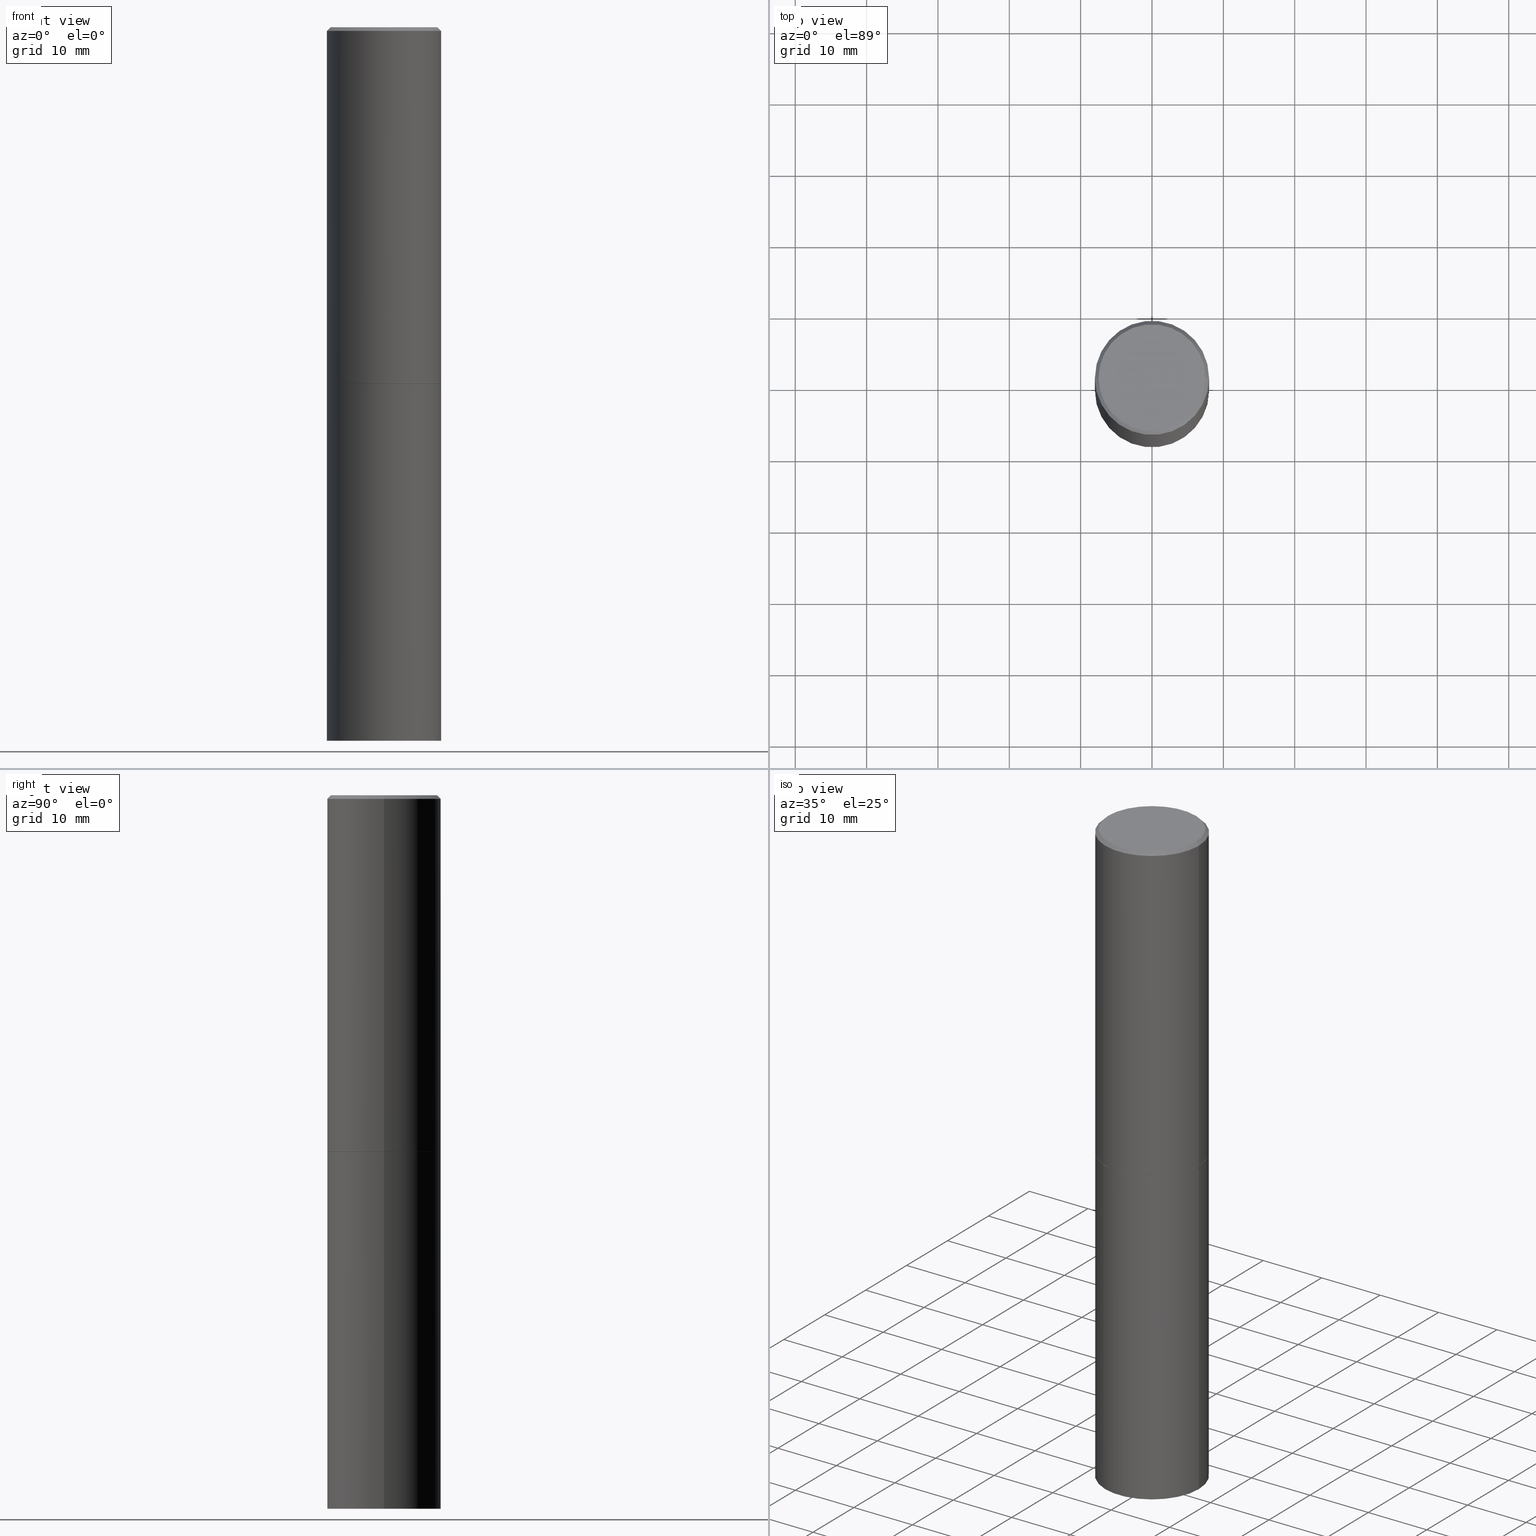
[diagram: canonical four-view strip — front | top / right | iso, engineering-drawing reading convention]
A machine part, canonical four-view strip (front | top / right | iso — engineering-drawing reading convention). The complete STEP part file that produces these views, byte-faithful:
ISO-10303-21;
HEADER;
FILE_DESCRIPTION (( 'STEP AP203' ),
    '1' );
FILE_NAME ('42626.STEP',
    '2024-02-28T03:46:43',
    ( '' ),
    ( '' ),
    'SwSTEP 2.0',
    'SolidWorks 2023',
    '' );
FILE_SCHEMA (( 'CONFIG_CONTROL_DESIGN' ));
ENDSEC;

DATA;
#1 = DIRECTION ( 'NONE',  ( 1.000000000000000000, -6.982962677686269866E-15, 0.000000000000000000 ) ) ;
#2 = DIRECTION ( 'NONE',  ( 0.000000000000000000, 0.000000000000000000, 1.000000000000000000 ) ) ;
#3 = EDGE_CURVE ( 'NONE', #113, #327, #360, .T. ) ;
#4 = CARTESIAN_POINT ( 'NONE',  ( 0.000000000000000000, 0.000000000000000000, 0.000000000000000000 ) ) ;
#5 = ORIENTED_EDGE ( 'NONE', *, *, #166, .T. ) ;
#6 = EDGE_CURVE ( 'NONE', #54, #350, #25, .T. ) ;
#7 = AXIS2_PLACEMENT_3D ( 'NONE', #102, #9, #126 ) ;
#8 = CARTESIAN_POINT ( 'NONE',  ( 9.627810689950883669E-29, -1.374596203102546341E-14, -3.937000000000000277 ) ) ;
#9 = DIRECTION ( 'NONE',  ( -2.445468806185136597E-29, 3.491481338843145583E-15, 1.000000000000000000 ) ) ;
#10 = FACE_OUTER_BOUND ( 'NONE', #64, .T. ) ;
#11 = CARTESIAN_POINT ( 'NONE',  ( 0.3149500000000000077, -9.072265110850021578E-15, -1.968500000000000139 ) ) ;
#12 = CC_DESIGN_DATE_AND_TIME_ASSIGNMENT ( #320, #72, ( #272 ) ) ;
#13 = PERSON_AND_ORGANIZATION ( #298, #171 ) ;
#14 = APPROVAL_PERSON_ORGANIZATION ( #32, #339, #310 ) ;
#15 = DIRECTION ( 'NONE',  ( 1.000000000000000000, -6.982962677686266711E-15, 0.000000000000000000 ) ) ;
#16 = DIRECTION ( 'NONE',  ( -2.445468806185136597E-29, 3.491481338843145583E-15, 1.000000000000000000 ) ) ;
#17 = FACE_OUTER_BOUND ( 'NONE', #322, .T. ) ;
#18 = CIRCLE ( 'NONE', #288, 0.3149499999999997302 ) ;
#19 = CC_DESIGN_APPROVAL ( #309, ( #272 ) ) ;
#20 = ORIENTED_EDGE ( 'NONE', *, *, #230, .F. ) ;
#21 = FACE_OUTER_BOUND ( 'NONE', #290, .T. ) ;
#22 = ORIENTED_EDGE ( 'NONE', *, *, #141, .F. ) ;
#23 = CC_DESIGN_PERSON_AND_ORGANIZATION_ASSIGNMENT ( #228, #340, ( #349 ) ) ;
#24 = DIRECTION ( 'NONE',  ( -2.445468806185136597E-29, 3.491481338843145583E-15, 1.000000000000000000 ) ) ;
#25 = CIRCLE ( 'NONE', #7, 0.3139500000000000068 ) ;
#26 = DIRECTION ( 'NONE',  ( 1.000000000000000000, -6.982962677686266711E-15, 0.000000000000000000 ) ) ;
#27 = APPROVAL_ROLE ( '' ) ;
#28 = ADVANCED_FACE ( 'NONE', ( #10 ), #259, .T. ) ;
#29 = VERTEX_POINT ( 'NONE', #67 ) ;
#30 = APPLICATION_PROTOCOL_DEFINITION ( 'international standard', 'config_control_design', 1994, #268 ) ;
#31 = ADVANCED_BREP_SHAPE_REPRESENTATION ( '42626', ( #341, #98, #246 ), #324 ) ;
#32 = PERSON_AND_ORGANIZATION ( #298, #171 ) ;
#33 = CIRCLE ( 'NONE', #133, 0.2949499999999997124 ) ;
#34 = SECURITY_CLASSIFICATION_LEVEL ( 'unclassified' ) ;
#35 = ADVANCED_FACE ( 'NONE', ( #315 ), #199, .T. ) ;
#36 = AXIS2_PLACEMENT_3D ( 'NONE', #8, #233, #1 ) ;
#37 = ORIENTED_EDGE ( 'NONE', *, *, #3, .F. ) ;
#38 = COORDINATED_UNIVERSAL_TIME_OFFSET ( 5, 0, .BEHIND. ) ;
#39 = PRODUCT_DEFINITION ( 'UNKNOWN', '', #205, #346 ) ;
#40 = CARTESIAN_POINT ( 'NONE',  ( 4.890937612370293302E-31, -6.982962677686318726E-17, -0.02000000000000008021 ) ) ;
#41 = CYLINDRICAL_SURFACE ( 'NONE', #204, 0.3149499999999998967 ) ;
#42 = ORIENTED_EDGE ( 'NONE', *, *, #325, .T. ) ;
#43 = LINE ( 'NONE', #162, #300 ) ;
#44 = CIRCLE ( 'NONE', #256, 0.3139500000000000068 ) ;
#45 = DIRECTION ( 'NONE',  ( 1.000000000000000000, -6.982962677686266711E-15, 0.000000000000000000 ) ) ;
#46 = ORIENTED_EDGE ( 'NONE', *, *, #274, .F. ) ;
#47 = DIRECTION ( 'NONE',  ( -2.445468806185136877E-29, 3.491481338843145188E-15, 1.000000000000000000 ) ) ;
#48 = CC_DESIGN_APPROVAL ( #206, ( #205 ) ) ;
#49 = ORIENTED_EDGE ( 'NONE', *, *, #282, .T. ) ;
#50 = CARTESIAN_POINT ( 'NONE',  ( 9.627810689950883669E-29, -1.374596203102546341E-14, -3.937000000000000277 ) ) ;
#51 = ORIENTED_EDGE ( 'NONE', *, *, #164, .T. ) ;
#52 = PERSON_AND_ORGANIZATION ( #298, #171 ) ;
#53 = AXIS2_PLACEMENT_3D ( 'NONE', #234, #353, #260 ) ;
#54 = VERTEX_POINT ( 'NONE', #128 ) ;
#55 = LOCAL_TIME ( 22, 46, 43.00000000000000000, #38 ) ;
#56 = PERSON_AND_ORGANIZATION_ROLE ( 'creator' ) ;
#57 = DIRECTION ( 'NONE',  ( 2.438088387897960049E-29, -3.491481338843145188E-15, -1.000000000000000000 ) ) ;
#58 = DATE_AND_TIME ( #90, #221 ) ;
#59 = CARTESIAN_POINT ( 'NONE',  ( 3.131554243005659264E-46, -4.471029511141341874E-32, -1.280553747030123384E-17 ) ) ;
#60 = PERSON_AND_ORGANIZATION_ROLE ( 'creator' ) ;
#61 = CLOSED_SHELL ( 'NONE', ( #145, #134, #265, #35, #28, #155, #224, #366 ) ) ;
#62 = CARTESIAN_POINT ( 'NONE',  ( 2.059624841783562091E-15, 0.2949499999999997124, -1.036215189626935433E-15 ) ) ;
#63 = EDGE_LOOP ( 'NONE', ( #5, #73, #283, #184 ) ) ;
#64 = EDGE_LOOP ( 'NONE', ( #92, #312, #42, #37 ) ) ;
#65 = DIRECTION ( 'NONE',  ( -2.445468806185136597E-29, 3.491481338843145583E-15, 1.000000000000000000 ) ) ;
#66 = DIRECTION ( 'NONE',  ( 2.438088387897960049E-29, -3.491481338843145188E-15, -1.000000000000000000 ) ) ;
#67 = CARTESIAN_POINT ( 'NONE',  ( -0.3149500000000000077, -8.071617176992661576E-15, -1.968500000000000139 ) ) ;
#68 = EDGE_CURVE ( 'NONE', #254, #113, #293, .T. ) ;
#69 = AXIS2_PLACEMENT_3D ( 'NONE', #267, #208, #71 ) ;
#70 = PLANE ( 'NONE',  #323 ) ;
#71 = DIRECTION ( 'NONE',  ( 1.000000000000000000, -6.982962677686266711E-15, 0.000000000000000000 ) ) ;
#72 = DATE_TIME_ROLE ( 'classification_date' ) ;
#73 = ORIENTED_EDGE ( 'NONE', *, *, #123, .T. ) ;
#74 = DIRECTION ( 'NONE',  ( -2.438088387897960049E-29, 3.491481338843145188E-15, 1.000000000000000000 ) ) ;
#75 = DIRECTION ( 'NONE',  ( -2.445468806185136877E-29, 3.491481338843145188E-15, 1.000000000000000000 ) ) ;
#76 = ORIENTED_EDGE ( 'NONE', *, *, #166, .F. ) ;
#77 = AXIS2_PLACEMENT_3D ( 'NONE', #191, #24, #142 ) ;
#78 = CARTESIAN_POINT ( 'NONE',  ( -0.3149500000000000077, -8.071617176992661576E-15, -3.937000000000000277 ) ) ;
#79 = CARTESIAN_POINT ( 'NONE',  ( -0.3149499999999997302, 2.129454468560424601E-15, -0.02000000000000008021 ) ) ;
#80 = CARTESIAN_POINT ( 'NONE',  ( 0.3149499999999998967, -2.199284095337288688E-15, 1.535751875536929289E-29 ) ) ;
#81 = CC_DESIGN_PERSON_AND_ORGANIZATION_ASSIGNMENT ( #52, #286, ( #272 ) ) ;
#82 = DIRECTION ( 'NONE',  ( -1.000000000000000000, 6.982962677686266711E-15, 0.000000000000000000 ) ) ;
#83 = CIRCLE ( 'NONE', #297, 0.3149500000000000077 ) ;
#84 = CARTESIAN_POINT ( 'NONE',  ( 0.3149500000000000077, -1.594524612636275486E-14, -3.937000000000000277 ) ) ;
#85 = EDGE_LOOP ( 'NONE', ( #156, #149, #264, #251 ) ) ;
#86 = ORIENTED_EDGE ( 'NONE', *, *, #211, .T. ) ;
#87 = CARTESIAN_POINT ( 'NONE',  ( 0.3139500000000000068, -9.065282148172333986E-15, -1.968499999999999694 ) ) ;
#88 = ORIENTED_EDGE ( 'NONE', *, *, #334, .F. ) ;
#89 = CALENDAR_DATE ( 2024, 27, 2 ) ;
#90 = CALENDAR_DATE ( 2024, 27, 2 ) ;
#91 = EDGE_CURVE ( 'NONE', #218, #29, #236, .T. ) ;
#92 = ORIENTED_EDGE ( 'NONE', *, *, #211, .F. ) ;
#93 = APPROVAL_DATE_TIME ( #225, #206 ) ;
#94 = DIRECTION ( 'NONE',  ( -2.445468806185136597E-29, 3.491481338843145583E-15, 1.000000000000000000 ) ) ;
#95 = DIRECTION ( 'NONE',  ( -1.000000000000000000, 6.982962677686266711E-15, 0.000000000000000000 ) ) ;
#96 = DIRECTION ( 'NONE',  ( 1.000000000000000000, -6.982962677686269866E-15, 0.000000000000000000 ) ) ;
#97 = DIRECTION ( 'NONE',  ( 1.000000000000000000, -6.982962677686266711E-15, 0.000000000000000000 ) ) ;
#98 = MANIFOLD_SOLID_BREP ( 'Body-Move/Copy2[2]', #61 ) ;
#99 = EDGE_LOOP ( 'NONE', ( #22, #154 ) ) ;
#100 = CONICAL_SURFACE ( 'NONE', #194, 0.3139500000000000068, 0.7853981633975507526 ) ;
#101 = CC_DESIGN_APPROVAL ( #339, ( #39 ) ) ;
#102 = CARTESIAN_POINT ( 'NONE',  ( 4.813905344975440714E-29, -6.872981015512730918E-15, -1.968499999999999694 ) ) ;
#103 = EDGE_CURVE ( 'NONE', #192, #327, #180, .T. ) ;
#104 = CARTESIAN_POINT ( 'NONE',  ( -0.3139500000000000068, -4.642232096593895942E-15, -1.968499999999999694 ) ) ;
#105 = DIRECTION ( 'NONE',  ( -2.445468806185136597E-29, 3.491481338843145583E-15, 1.000000000000000000 ) ) ;
#106 = VECTOR ( 'NONE', #153, 39.37007874015748143 ) ;
#107 = ORIENTED_EDGE ( 'NONE', *, *, #103, .F. ) ;
#108 = CARTESIAN_POINT ( 'NONE',  ( 0.3139500000000000068, -9.065282148172333986E-15, -1.968499999999999694 ) ) ;
#109 = EDGE_CURVE ( 'NONE', #172, #218, #112, .T. ) ;
#110 = CARTESIAN_POINT ( 'NONE',  ( 0.000000000000000000, 0.000000000000000000, 0.000000000000000000 ) ) ;
#111 = CARTESIAN_POINT ( 'NONE',  ( 4.890937612370293302E-31, -6.982962677686318726E-17, -0.02000000000000008021 ) ) ;
#112 = LINE ( 'NONE', #209, #183 ) ;
#113 = VERTEX_POINT ( 'NONE', #79 ) ;
#114 = DIRECTION ( 'NONE',  ( 1.000000000000000000, -6.982962677686266711E-15, 4.876176775795936353E-29 ) ) ;
#115 = AXIS2_PLACEMENT_3D ( 'NONE', #59, #94, #258 ) ;
#116 = APPROVAL_DATE_TIME ( #58, #339 ) ;
#117 =( CONVERSION_BASED_UNIT ( 'INCH', #343 ) LENGTH_UNIT ( ) NAMED_UNIT ( #146 ) );
#118 = ORIENTED_EDGE ( 'NONE', *, *, #91, .T. ) ;
#119 = MECHANICAL_CONTEXT ( 'NONE', #268, 'mechanical' ) ;
#120 = CIRCLE ( 'NONE', #249, 0.3149500000000000077 ) ;
#121 = CIRCLE ( 'NONE', #232, 0.3149500000000000077 ) ;
#122 = COORDINATED_UNIVERSAL_TIME_OFFSET ( 5, 0, .BEHIND. ) ;
#123 = EDGE_CURVE ( 'NONE', #303, #29, #190, .T. ) ;
#124 = FACE_OUTER_BOUND ( 'NONE', #356, .T. ) ;
#125 = DIRECTION ( 'NONE',  ( 1.000000000000000000, -6.982962677686266711E-15, 0.000000000000000000 ) ) ;
#126 = DIRECTION ( 'NONE',  ( 1.000000000000000000, -6.982962677686266711E-15, 0.000000000000000000 ) ) ;
#127 = CONICAL_SURFACE ( 'NONE', #278, 0.3139500000000000068, 0.7853981633975507526 ) ;
#128 = CARTESIAN_POINT ( 'NONE',  ( -0.3139500000000000068, -4.636933642245673540E-15, -1.968499999999999694 ) ) ;
#129 = CARTESIAN_POINT ( 'NONE',  ( -0.3149499999999997302, 2.129454468560424601E-15, -0.02000000000000008021 ) ) ;
#130 = CARTESIAN_POINT ( 'NONE',  ( 4.813905344975441835E-29, -6.872981015512731707E-15, -1.968500000000000139 ) ) ;
#131 = DIRECTION ( 'NONE',  ( -2.445468806185136597E-29, 3.491481338843145583E-15, 1.000000000000000000 ) ) ;
#132 = APPROVAL_DATE_TIME ( #354, #309 ) ;
#133 = AXIS2_PLACEMENT_3D ( 'NONE', #331, #338, #231 ) ;
#134 = ADVANCED_FACE ( 'NONE', ( #182 ), #41, .T. ) ;
#135 = ORIENTED_EDGE ( 'NONE', *, *, #68, .F. ) ;
#136 = CARTESIAN_POINT ( 'NONE',  ( 4.813905344975440714E-29, -6.872981015512730918E-15, -1.968499999999999694 ) ) ;
#137 = CARTESIAN_POINT ( 'NONE',  ( 4.813905344975441835E-29, -6.872981015512731707E-15, -1.968500000000000139 ) ) ;
#138 = ORIENTED_EDGE ( 'NONE', *, *, #274, .T. ) ;
#139 = DIRECTION ( 'NONE',  ( 2.438088387897960049E-29, -3.491481338843145188E-15, -1.000000000000000000 ) ) ;
#140 = AXIS2_PLACEMENT_3D ( 'NONE', #357, #66, #276 ) ;
#141 = EDGE_CURVE ( 'NONE', #350, #54, #44, .T. ) ;
#142 = DIRECTION ( 'NONE',  ( 1.000000000000000000, -6.982962677686266711E-15, 4.876176775795936353E-29 ) ) ;
#143 = FACE_OUTER_BOUND ( 'NONE', #161, .T. ) ;
#144 = AXIS2_PLACEMENT_3D ( 'NONE', #40, #163, #95 ) ;
#145 = ADVANCED_FACE ( 'NONE', ( #21 ), #127, .T. ) ;
#146 = DIMENSIONAL_EXPONENTS ( 1.000000000000000000, 0.000000000000000000, 0.000000000000000000, 0.000000000000000000, 0.000000000000000000, 0.000000000000000000, 0.000000000000000000 ) ;
#147 = LINE ( 'NONE', #108, #316 ) ;
#148 = CALENDAR_DATE ( 2024, 27, 2 ) ;
#149 = ORIENTED_EDGE ( 'NONE', *, *, #179, .T. ) ;
#150 = COORDINATED_UNIVERSAL_TIME_OFFSET ( 5, 0, .BEHIND. ) ;
#151 = CC_DESIGN_PERSON_AND_ORGANIZATION_ASSIGNMENT ( #201, #174, ( #205 ) ) ;
#152 = COORDINATED_UNIVERSAL_TIME_OFFSET ( 5, 0, .BEHIND. ) ;
#153 = DIRECTION ( 'NONE',  ( 0.7071067811865467956, -7.319954787623254468E-15, -0.7071067811865482389 ) ) ;
#154 = ORIENTED_EDGE ( 'NONE', *, *, #6, .F. ) ;
#155 = ADVANCED_FACE ( 'NONE', ( #326 ), #100, .T. ) ;
#156 = ORIENTED_EDGE ( 'NONE', *, *, #123, .F. ) ;
#157 = DIRECTION ( 'NONE',  ( 1.000000000000000000, -6.982962677686269866E-15, 0.000000000000000000 ) ) ;
#158 = ORIENTED_EDGE ( 'NONE', *, *, #195, .T. ) ;
#159 = CIRCLE ( 'NONE', #36, 0.3149500000000000077 ) ;
#160 = LOCAL_TIME ( 22, 46, 43.00000000000000000, #176 ) ;
#161 = EDGE_LOOP ( 'NONE', ( #335, #210, #138, #135 ) ) ;
#162 = CARTESIAN_POINT ( 'NONE',  ( -0.3149499999999998967, 2.237854346276434801E-15, -1.549218606675782116E-29 ) ) ;
#163 = DIRECTION ( 'NONE',  ( 2.445468806185136597E-29, -3.491481338843145583E-15, -1.000000000000000000 ) ) ;
#164 = EDGE_CURVE ( 'NONE', #173, #364, #121, .T. ) ;
#165 = EDGE_LOOP ( 'NONE', ( #20, #202, #49, #177 ) ) ;
#166 = EDGE_CURVE ( 'NONE', #172, #303, #159, .T. ) ;
#167 = AXIS2_PLACEMENT_3D ( 'NONE', #185, #139, #328 ) ;
#168 = DIRECTION ( 'NONE',  ( -2.445468806185136597E-29, 3.491481338843145583E-15, 1.000000000000000000 ) ) ;
#169 = LINE ( 'NONE', #80, #188 ) ;
#170 = DIRECTION ( 'NONE',  ( -2.445468806185136597E-29, 3.491481338843145583E-15, 1.000000000000000000 ) ) ;
#171 = ORGANIZATION ( 'UNSPECIFIED', 'UNSPECIFIED', '' ) ;
#172 = VERTEX_POINT ( 'NONE', #84 ) ;
#173 = VERTEX_POINT ( 'NONE', #304 ) ;
#174 = PERSON_AND_ORGANIZATION_ROLE ( 'design_supplier' ) ;
#175 = CIRCLE ( 'NONE', #115, 0.2949499999999997124 ) ;
#176 = COORDINATED_UNIVERSAL_TIME_OFFSET ( 5, 0, .BEHIND. ) ;
#177 = ORIENTED_EDGE ( 'NONE', *, *, #219, .F. ) ;
#178 = DIRECTION ( 'NONE',  ( -1.000000000000000000, 6.982962677686265922E-15, -4.876176775795935793E-29 ) ) ;
#179 = EDGE_CURVE ( 'NONE', #303, #172, #83, .T. ) ;
#180 = LINE ( 'NONE', #295, #106 ) ;
#181 = CALENDAR_DATE ( 2024, 27, 2 ) ;
#182 = FACE_OUTER_BOUND ( 'NONE', #186, .T. ) ;
#183 = VECTOR ( 'NONE', #280, 39.37007874015748143 ) ;
#184 = ORIENTED_EDGE ( 'NONE', *, *, #109, .F. ) ;
#185 = CARTESIAN_POINT ( 'NONE',  ( 2.199284095337385323E-15, 0.3149499999999862965, -3.937000000000001165 ) ) ;
#186 = EDGE_LOOP ( 'NONE', ( #51, #86, #46, #227 ) ) ;
#187 = ORIENTED_EDGE ( 'NONE', *, *, #230, .T. ) ;
#188 = VECTOR ( 'NONE', #47, 39.37007874015748143 ) ;
#189 = FACE_OUTER_BOUND ( 'NONE', #63, .T. ) ;
#190 = LINE ( 'NONE', #212, #277 ) ;
#191 = CARTESIAN_POINT ( 'NONE',  ( 0.000000000000000000, 0.000000000000000000, 0.000000000000000000 ) ) ;
#192 = VERTEX_POINT ( 'NONE', #302 ) ;
#193 = CARTESIAN_POINT ( 'NONE',  ( -0.3149500000000000077, -1.231805234198938239E-15, -1.967500000000000027 ) ) ;
#194 = AXIS2_PLACEMENT_3D ( 'NONE', #262, #332, #125 ) ;
#195 = EDGE_CURVE ( 'NONE', #29, #218, #270, .T. ) ;
#196 = ORIENTED_EDGE ( 'NONE', *, *, #164, .F. ) ;
#197 = PERSON_AND_ORGANIZATION ( #298, #171 ) ;
#198 = UNCERTAINTY_MEASURE_WITH_UNIT (LENGTH_MEASURE( 1.000000000000000082E-05 ), #117, 'distance_accuracy_value', 'NONE');
#199 = CONICAL_SURFACE ( 'NONE', #144, 0.3149499999999997302, 0.7853981633974472798 ) ;
#200 = APPROVAL_PERSON_ORGANIZATION ( #13, #309, #261 ) ;
#201 = PERSON_AND_ORGANIZATION ( #298, #171 ) ;
#202 = ORIENTED_EDGE ( 'NONE', *, *, #6, .T. ) ;
#203 = ORIENTED_EDGE ( 'NONE', *, *, #3, .T. ) ;
#204 = AXIS2_PLACEMENT_3D ( 'NONE', #110, #273, #362 ) ;
#205 = PRODUCT_DEFINITION_FORMATION_WITH_SPECIFIED_SOURCE ( 'ANY', '', #349, .NOT_KNOWN. ) ;
#206 = APPROVAL ( #305, 'UNSPECIFIED' ) ;
#207 = DIRECTION ( 'NONE',  ( -2.445468806185136597E-29, 3.491481338843145583E-15, 1.000000000000000000 ) ) ;
#208 = DIRECTION ( 'NONE',  ( -2.445468806185136597E-29, 3.491481338843145583E-15, 1.000000000000000000 ) ) ;
#209 = CARTESIAN_POINT ( 'NONE',  ( 0.3149500000000000077, -2.199284095337289871E-15, 1.535751875536930130E-29 ) ) ;
#210 = ORIENTED_EDGE ( 'NONE', *, *, #103, .T. ) ;
#211 = EDGE_CURVE ( 'NONE', #364, #113, #43, .T. ) ;
#212 = CARTESIAN_POINT ( 'NONE',  ( -0.3149500000000000077, 2.237854346276435590E-15, -1.549218606675782676E-29 ) ) ;
#213 = EDGE_LOOP ( 'NONE', ( #118, #158 ) ) ;
#214 = DIRECTION ( 'NONE',  ( -2.445468806185136597E-29, 3.491481338843145583E-15, 1.000000000000000000 ) ) ;
#215 = ORIENTED_EDGE ( 'NONE', *, *, #282, .F. ) ;
#216 = PLANE ( 'NONE',  #167 ) ;
#217 = EDGE_LOOP ( 'NONE', ( #107, #88, #237, #203 ) ) ;
#218 = VERTEX_POINT ( 'NONE', #11 ) ;
#219 = EDGE_CURVE ( 'NONE', #364, #173, #120, .T. ) ;
#220 = CARTESIAN_POINT ( 'NONE',  ( 0.3149499999999997302, -2.230543471175005478E-15, -0.02000000000000008021 ) ) ;
#221 = LOCAL_TIME ( 22, 46, 43.00000000000000000, #150 ) ;
#222 = FACE_OUTER_BOUND ( 'NONE', #85, .T. ) ;
#223 = PERSON_AND_ORGANIZATION ( #298, #171 ) ;
#224 = ADVANCED_FACE ( 'NONE', ( #275 ), #70, .F. ) ;
#225 = DATE_AND_TIME ( #148, #160 ) ;
#226 = AXIS2_PLACEMENT_3D ( 'NONE', #4, #131, #345 ) ;
#227 = ORIENTED_EDGE ( 'NONE', *, *, #325, .F. ) ;
#228 = PERSON_AND_ORGANIZATION ( #298, #171 ) ;
#229 =( LENGTH_UNIT ( ) NAMED_UNIT ( * ) SI_UNIT ( $, .METRE. ) );
#230 = EDGE_CURVE ( 'NONE', #54, #364, #240, .T. ) ;
#231 = DIRECTION ( 'NONE',  ( 1.000000000000000000, -6.982962677686267499E-15, 4.876053491004739391E-29 ) ) ;
#232 = AXIS2_PLACEMENT_3D ( 'NONE', #313, #65, #157 ) ;
#233 = DIRECTION ( 'NONE',  ( -2.445468806185136597E-29, 3.491481338843145583E-15, 1.000000000000000000 ) ) ;
#234 = CARTESIAN_POINT ( 'NONE',  ( 4.890937612370293302E-31, -6.982962677686318726E-17, -0.02000000000000008021 ) ) ;
#235 = ADVANCED_FACE ( 'NONE', ( #359 ), #239, .F. ) ;
#236 = CIRCLE ( 'NONE', #69, 0.3149500000000000077 ) ;
#237 = ORIENTED_EDGE ( 'NONE', *, *, #68, .T. ) ;
#238 = PRODUCT_DEFINITION_SHAPE ( 'NONE', 'NONE',  #39 ) ;
#239 = PLANE ( 'NONE',  #140 ) ;
#240 = LINE ( 'NONE', #104, #292 ) ;
#241 = ORIENTED_EDGE ( 'NONE', *, *, #355, .T. ) ;
#242 =( NAMED_UNIT ( * ) SI_UNIT ( $, .STERADIAN. ) SOLID_ANGLE_UNIT ( ) );
#243 = ADVANCED_FACE ( 'NONE', ( #222 ), #361, .T. ) ;
#244 = DIRECTION ( 'NONE',  ( -0.7071067811866199593, 7.493145998870616062E-15, 0.7071067811864750752 ) ) ;
#245 = DIRECTION ( 'NONE',  ( -2.445468806185136597E-29, 3.491481338843145583E-15, 1.000000000000000000 ) ) ;
#246 = AXIS2_PLACEMENT_3D ( 'NONE', #253, #2, #308 ) ;
#247 = PRODUCT_RELATED_PRODUCT_CATEGORY ( 'detail', '', ( #349 ) ) ;
#248 = DIRECTION ( 'NONE',  ( 2.445468806185136597E-29, -3.491481338843145583E-15, -1.000000000000000000 ) ) ;
#249 = AXIS2_PLACEMENT_3D ( 'NONE', #351, #207, #319 ) ;
#250 = LOCAL_TIME ( 22, 46, 43.00000000000000000, #122 ) ;
#251 = ORIENTED_EDGE ( 'NONE', *, *, #195, .F. ) ;
#252 = DIRECTION ( 'NONE',  ( 0.7071067811866199593, -2.468850131083015945E-15, 0.7071067811864750752 ) ) ;
#253 = CARTESIAN_POINT ( 'NONE',  ( 0.000000000000000000, 0.000000000000000000, 0.000000000000000000 ) ) ;
#254 = VERTEX_POINT ( 'NONE', #281 ) ;
#255 = DATE_AND_TIME ( #306, #289 ) ;
#256 = AXIS2_PLACEMENT_3D ( 'NONE', #271, #168, #15 ) ;
#257 = DATE_TIME_ROLE ( 'creation_date' ) ;
#258 = DIRECTION ( 'NONE',  ( 1.000000000000000000, -6.982962677686267499E-15, 4.876053491004739391E-29 ) ) ;
#259 = CYLINDRICAL_SURFACE ( 'NONE', #226, 0.3149499999999998967 ) ;
#260 = DIRECTION ( 'NONE',  ( 1.000000000000000000, -6.982962677686266711E-15, 0.000000000000000000 ) ) ;
#261 = APPROVAL_ROLE ( '' ) ;
#262 = CARTESIAN_POINT ( 'NONE',  ( 4.813905344975440714E-29, -6.872981015512730918E-15, -1.968499999999999694 ) ) ;
#263 = VECTOR ( 'NONE', #294, 39.37007874015748143 ) ;
#264 = ORIENTED_EDGE ( 'NONE', *, *, #109, .T. ) ;
#265 = ADVANCED_FACE ( 'NONE', ( #143 ), #337, .T. ) ;
#266 = DIRECTION ( 'NONE',  ( -2.445468806185136877E-29, 3.491481338843145188E-15, 1.000000000000000000 ) ) ;
#267 = CARTESIAN_POINT ( 'NONE',  ( 4.813905344975441835E-29, -6.872981015512731707E-15, -1.968500000000000139 ) ) ;
#268 = APPLICATION_CONTEXT ( 'configuration controlled 3d designs of mechanical parts and assemblies' ) ;
#269 = DIRECTION ( 'NONE',  ( 1.000000000000000000, -6.982962677686265922E-15, 4.876176775795935793E-29 ) ) ;
#270 = CIRCLE ( 'NONE', #284, 0.3149500000000000077 ) ;
#271 = CARTESIAN_POINT ( 'NONE',  ( 4.813905344975440714E-29, -6.872981015512730918E-15, -1.968499999999999694 ) ) ;
#272 = SECURITY_CLASSIFICATION ( '', '', #34 ) ;
#273 = DIRECTION ( 'NONE',  ( -2.445468806185136597E-29, 3.491481338843145583E-15, 1.000000000000000000 ) ) ;
#274 = EDGE_CURVE ( 'NONE', #327, #113, #18, .T. ) ;
#275 = FACE_OUTER_BOUND ( 'NONE', #99, .T. ) ;
#276 = DIRECTION ( 'NONE',  ( -1.000000000000000000, 6.982962677686265922E-15, -4.876176775795935793E-29 ) ) ;
#277 = VECTOR ( 'NONE', #75, 39.37007874015748143 ) ;
#278 = AXIS2_PLACEMENT_3D ( 'NONE', #136, #245, #45 ) ;
#279 = CC_DESIGN_DATE_AND_TIME_ASSIGNMENT ( #255, #257, ( #39 ) ) ;
#280 = DIRECTION ( 'NONE',  ( -2.445468806185136877E-29, 3.491481338843145188E-15, 1.000000000000000000 ) ) ;
#281 = CARTESIAN_POINT ( 'NONE',  ( -0.2949499999999997124, 2.094539655171993740E-15, -1.280553747031575997E-17 ) ) ;
#282 = EDGE_CURVE ( 'NONE', #350, #173, #147, .T. ) ;
#283 = ORIENTED_EDGE ( 'NONE', *, *, #91, .F. ) ;
#284 = AXIS2_PLACEMENT_3D ( 'NONE', #130, #16, #97 ) ;
#285 = CARTESIAN_POINT ( 'NONE',  ( 4.890937612370293302E-31, -6.982962677686318726E-17, -0.02000000000000008021 ) ) ;
#286 = PERSON_AND_ORGANIZATION_ROLE ( 'classification_officer' ) ;
#287 = APPROVAL_STATUS ( 'not_yet_approved' ) ;
#288 = AXIS2_PLACEMENT_3D ( 'NONE', #285, #105, #26 ) ;
#289 = LOCAL_TIME ( 22, 46, 43.00000000000000000, #152 ) ;
#290 = EDGE_LOOP ( 'NONE', ( #358, #187, #196, #215 ) ) ;
#291 = ADVANCED_FACE ( 'NONE', ( #189 ), #365, .T. ) ;
#292 = VECTOR ( 'NONE', #244, 39.37007874015748143 ) ;
#293 = LINE ( 'NONE', #129, #263 ) ;
#294 = DIRECTION ( 'NONE',  ( -0.7071067811865467956, 2.468850131082249172E-15, -0.7071067811865482389 ) ) ;
#295 = CARTESIAN_POINT ( 'NONE',  ( 0.3149499999999997302, -2.230543471175005478E-15, -0.02000000000000008021 ) ) ;
#296 = CC_DESIGN_PERSON_AND_ORGANIZATION_ASSIGNMENT ( #336, #56, ( #205 ) ) ;
#297 = AXIS2_PLACEMENT_3D ( 'NONE', #50, #170, #96 ) ;
#298 = PERSON ( 'UNSPECIFIED', 'UNSPECIFIED', 'UNSPECIFIED', ('UNSPECIFIED'), ('UNSPECIFIED'), ('UNSPECIFIED') ) ;
#299 = CARTESIAN_POINT ( 'NONE',  ( 0.000000000000000000, 0.000000000000000000, 0.000000000000000000 ) ) ;
#300 = VECTOR ( 'NONE', #266, 39.37007874015748143 ) ;
#301 = APPROVAL_PERSON_ORGANIZATION ( #223, #206, #27 ) ;
#302 = CARTESIAN_POINT ( 'NONE',  ( 0.2949499999999997124, -2.127023677808858103E-15, -1.280553747028659369E-17 ) ) ;
#303 = VERTEX_POINT ( 'NONE', #78 ) ;
#304 = CARTESIAN_POINT ( 'NONE',  ( 0.3149500000000000077, -9.068773629511178571E-15, -1.967500000000000027 ) ) ;
#305 = APPROVAL_STATUS ( 'not_yet_approved' ) ;
#306 = CALENDAR_DATE ( 2024, 27, 2 ) ;
#307 = PLANE ( 'NONE',  #311 ) ;
#308 = DIRECTION ( 'NONE',  ( 1.000000000000000000, 0.000000000000000000, 0.000000000000000000 ) ) ;
#309 = APPROVAL ( #318, 'UNSPECIFIED' ) ;
#310 = APPROVAL_ROLE ( '' ) ;
#311 = AXIS2_PLACEMENT_3D ( 'NONE', #62, #57, #178 ) ;
#312 = ORIENTED_EDGE ( 'NONE', *, *, #219, .T. ) ;
#313 = CARTESIAN_POINT ( 'NONE',  ( 4.811459876169256232E-29, -6.869489534173888700E-15, -1.967500000000000027 ) ) ;
#314 = ADVANCED_FACE ( 'NONE', ( #17 ), #216, .T. ) ;
#315 = FACE_OUTER_BOUND ( 'NONE', #217, .T. ) ;
#316 = VECTOR ( 'NONE', #252, 39.37007874015748143 ) ;
#317 = CC_DESIGN_SECURITY_CLASSIFICATION ( #272, ( #205 ) ) ;
#318 = APPROVAL_STATUS ( 'not_yet_approved' ) ;
#319 = DIRECTION ( 'NONE',  ( 1.000000000000000000, -6.982962677686269866E-15, 0.000000000000000000 ) ) ;
#320 = DATE_AND_TIME ( #89, #250 ) ;
#321 = CC_DESIGN_PERSON_AND_ORGANIZATION_ASSIGNMENT ( #197, #60, ( #39 ) ) ;
#322 = EDGE_LOOP ( 'NONE', ( #76, #329 ) ) ;
#323 = AXIS2_PLACEMENT_3D ( 'NONE', #137, #74, #269 ) ;
#324 =( GEOMETRIC_REPRESENTATION_CONTEXT ( 3 ) GLOBAL_UNCERTAINTY_ASSIGNED_CONTEXT ( ( #198 ) ) GLOBAL_UNIT_ASSIGNED_CONTEXT ( ( #117, #333, #242 ) ) REPRESENTATION_CONTEXT ( 'NONE', 'WORKASPACE' ) );
#325 = EDGE_CURVE ( 'NONE', #173, #327, #169, .T. ) ;
#326 = FACE_OUTER_BOUND ( 'NONE', #165, .T. ) ;
#327 = VERTEX_POINT ( 'NONE', #220 ) ;
#328 = DIRECTION ( 'NONE',  ( -1.000000000000000000, 6.982962677686265922E-15, -4.876176775795935793E-29 ) ) ;
#329 = ORIENTED_EDGE ( 'NONE', *, *, #179, .F. ) ;
#330 = CLOSED_SHELL ( 'NONE', ( #291, #314, #235, #243 ) ) ;
#331 = CARTESIAN_POINT ( 'NONE',  ( 3.131554243005659264E-46, -4.471029511141341874E-32, -1.280553747030123384E-17 ) ) ;
#332 = DIRECTION ( 'NONE',  ( -2.445468806185136597E-29, 3.491481338843145583E-15, 1.000000000000000000 ) ) ;
#333 =( NAMED_UNIT ( * ) PLANE_ANGLE_UNIT ( ) SI_UNIT ( $, .RADIAN. ) );
#334 = EDGE_CURVE ( 'NONE', #254, #192, #33, .T. ) ;
#335 = ORIENTED_EDGE ( 'NONE', *, *, #355, .F. ) ;
#336 = PERSON_AND_ORGANIZATION ( #298, #171 ) ;
#337 = CONICAL_SURFACE ( 'NONE', #344, 0.3149499999999997302, 0.7853981633974472798 ) ;
#338 = DIRECTION ( 'NONE',  ( -2.445468806185136597E-29, 3.491481338843145583E-15, 1.000000000000000000 ) ) ;
#339 = APPROVAL ( #287, 'UNSPECIFIED' ) ;
#340 = PERSON_AND_ORGANIZATION_ROLE ( 'design_owner' ) ;
#341 = MANIFOLD_SOLID_BREP ( 'Body-Move/Copy2[1]', #330 ) ;
#342 = APPLICATION_PROTOCOL_DEFINITION ( 'international standard', 'config_control_design', 1994, #363 ) ;
#343 = LENGTH_MEASURE_WITH_UNIT ( LENGTH_MEASURE( 0.02539999999999999897 ), #229 );
#344 = AXIS2_PLACEMENT_3D ( 'NONE', #111, #248, #82 ) ;
#345 = DIRECTION ( 'NONE',  ( 1.000000000000000000, -6.982962677686265922E-15, 4.876176775795935232E-29 ) ) ;
#346 = DESIGN_CONTEXT ( 'detailed design', #363, 'design' ) ;
#347 = SHAPE_DEFINITION_REPRESENTATION ( #238, #31 ) ;
#348 = ORIENTED_EDGE ( 'NONE', *, *, #334, .T. ) ;
#349 = PRODUCT ( '42626', '42626', '', ( #119 ) ) ;
#350 = VERTEX_POINT ( 'NONE', #87 ) ;
#351 = CARTESIAN_POINT ( 'NONE',  ( 4.811459876169256232E-29, -6.869489534173888700E-15, -1.967500000000000027 ) ) ;
#352 = AXIS2_PLACEMENT_3D ( 'NONE', #299, #214, #114 ) ;
#353 = DIRECTION ( 'NONE',  ( -2.445468806185136597E-29, 3.491481338843145583E-15, 1.000000000000000000 ) ) ;
#354 = DATE_AND_TIME ( #181, #55 ) ;
#355 = EDGE_CURVE ( 'NONE', #192, #254, #175, .T. ) ;
#356 = EDGE_LOOP ( 'NONE', ( #348, #241 ) ) ;
#357 = CARTESIAN_POINT ( 'NONE',  ( 2.199284095337337203E-15, 0.3149499999999931243, -1.968500000000001249 ) ) ;
#358 = ORIENTED_EDGE ( 'NONE', *, *, #141, .T. ) ;
#359 = FACE_OUTER_BOUND ( 'NONE', #213, .T. ) ;
#360 = CIRCLE ( 'NONE', #53, 0.3149499999999997302 ) ;
#361 = CYLINDRICAL_SURFACE ( 'NONE', #77, 0.3149500000000000077 ) ;
#362 = DIRECTION ( 'NONE',  ( 1.000000000000000000, -6.982962677686265922E-15, 4.876176775795935232E-29 ) ) ;
#363 = APPLICATION_CONTEXT ( 'configuration controlled 3d designs of mechanical parts and assemblies' ) ;
#364 = VERTEX_POINT ( 'NONE', #193 ) ;
#365 = CYLINDRICAL_SURFACE ( 'NONE', #352, 0.3149500000000000077 ) ;
#366 = ADVANCED_FACE ( 'NONE', ( #124 ), #307, .F. ) ;
ENDSEC;
END-ISO-10303-21;
